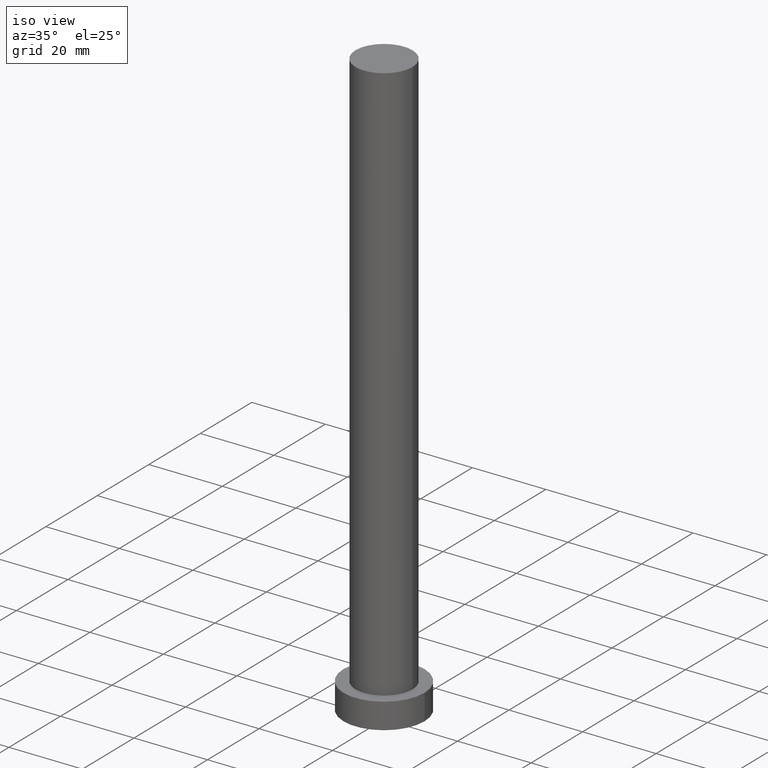
[diagram: clean part render]
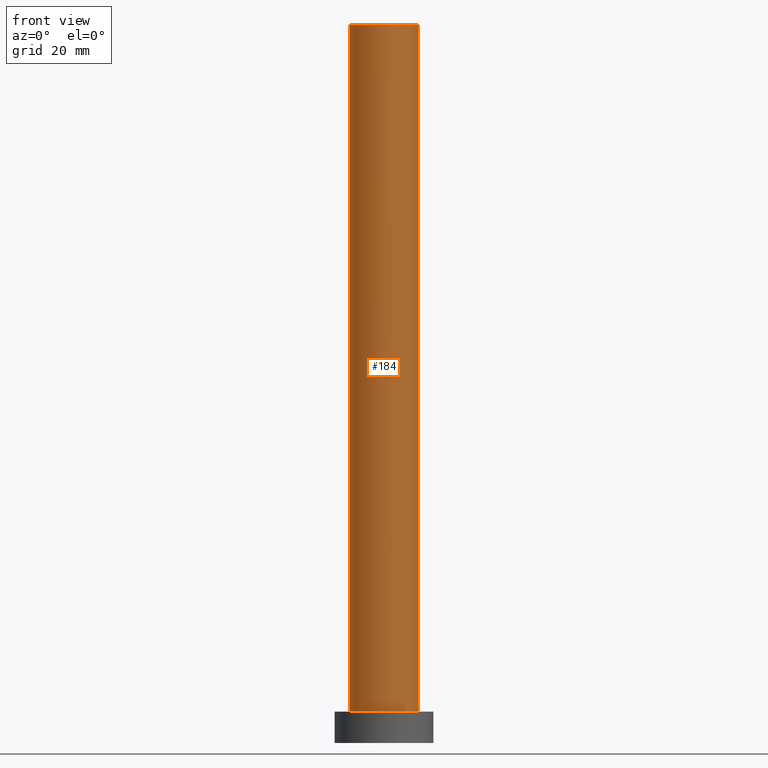
[diagram: tour spotlight — one face highlighted and labeled with its STEP entity id]
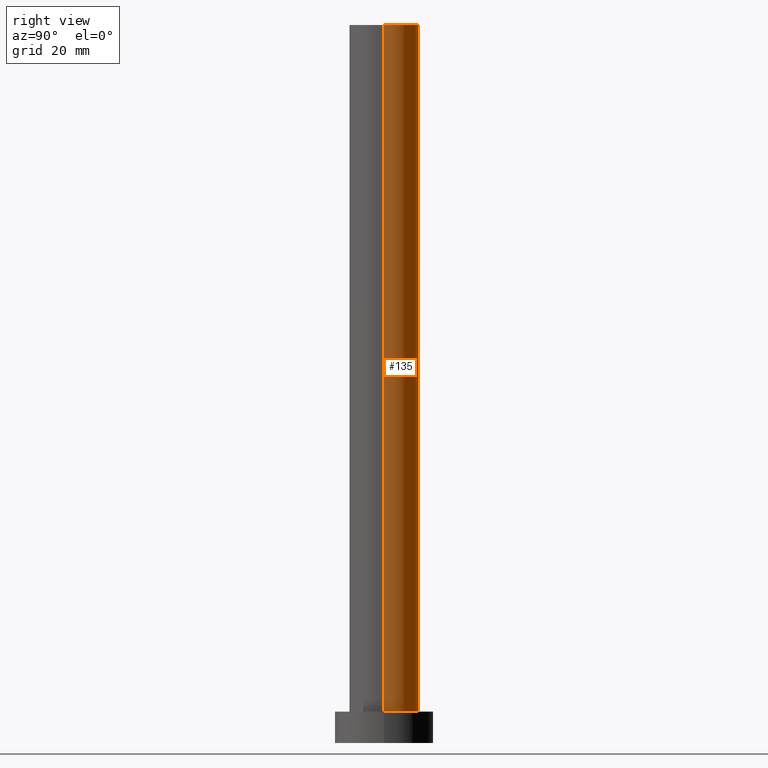
[diagram: tour spotlight — one face highlighted and labeled with its STEP entity id]
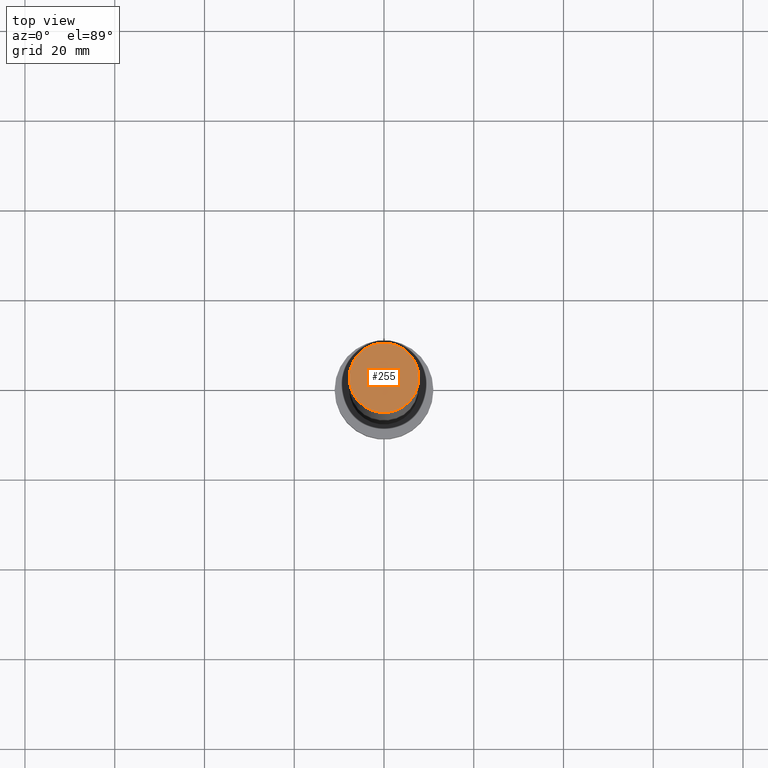
[diagram: tour spotlight — one face highlighted and labeled with its STEP entity id]
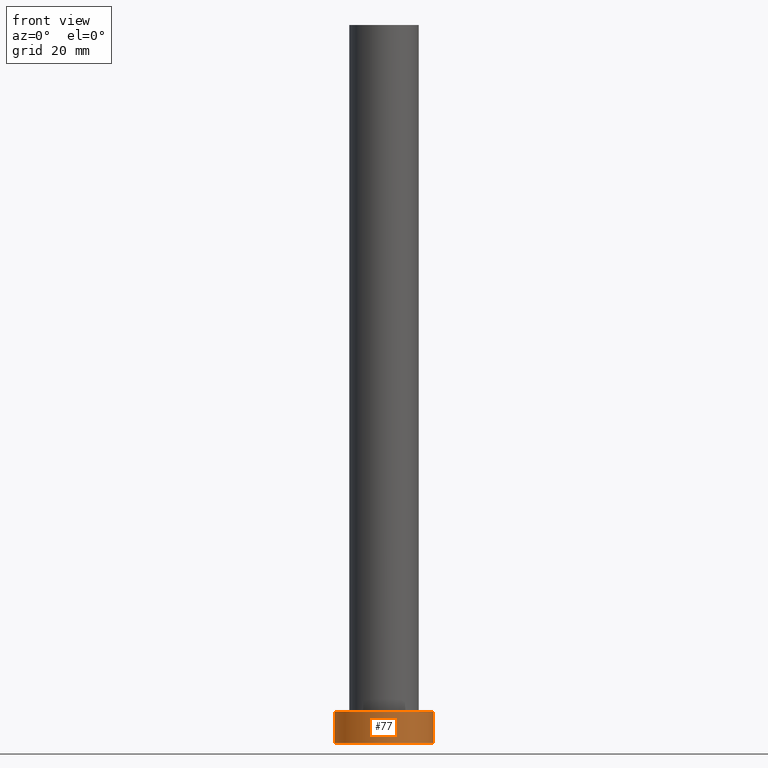
[diagram: tour spotlight — one face highlighted and labeled with its STEP entity id]
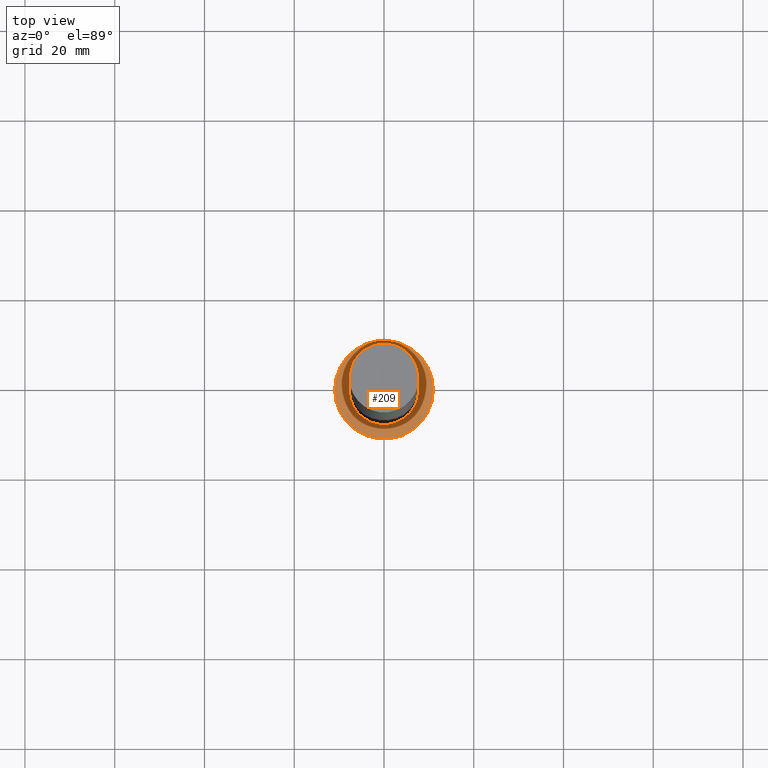
[diagram: tour spotlight — one face highlighted and labeled with its STEP entity id]
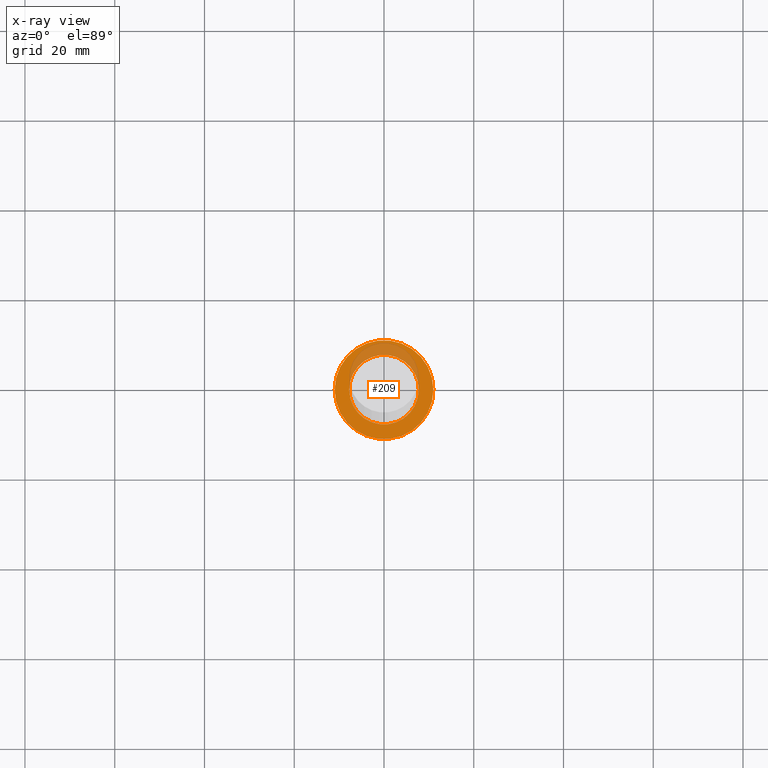
[diagram: x-ray of the same camera — body ghosted, this tour face saturated]
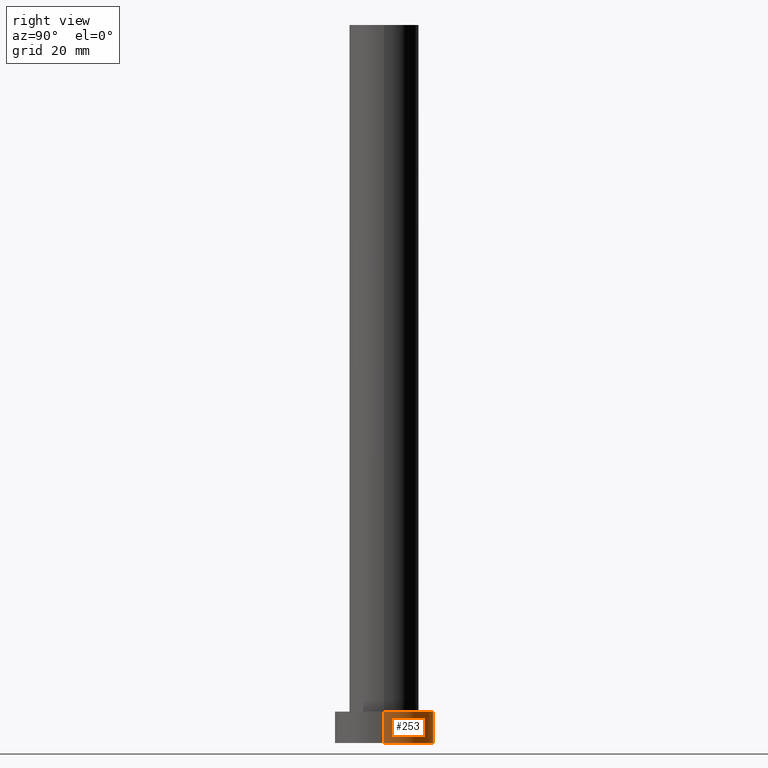
[diagram: tour spotlight — one face highlighted and labeled with its STEP entity id]
A machine part: a face-by-face anatomy tour. The part has 7 B-rep faces; the first image is the clean iso view, then the 6 largest visible faces are spotlighted one at a time (largest first), each with its STEP entity span.

Face 1 — front view, entity #184. In plain terms, the highlighted cylindrical surface (edge-blend (fillet) strip) has radius 7.75 mm, axis along (-0, -0, -1).
Definition (entity closure, byte-faithful):
#10 = DIRECTION ( 'NONE',  ( 0.000000000000000000, 0.000000000000000000, 1.000000000000000000 ) ) ;
#14 = EDGE_CURVE ( 'NONE', #80, #98, #183, .T. ) ;
#25 = CARTESIAN_POINT ( 'NONE',  ( 0.000000000000000000, 0.000000000000000000, 160.0000000000000000 ) ) ;
#26 = CARTESIAN_POINT ( 'NONE',  ( -7.750000000000000000, 0.000000000000000000, 7.000000000000000000 ) ) ;
#39 = CIRCLE ( 'NONE', #53, 7.750000000000000000 ) ;
#40 = LINE ( 'NONE', #100, #207 ) ;
#45 = VECTOR ( 'NONE', #249, 1000.000000000000000 ) ;
#46 = CARTESIAN_POINT ( 'NONE',  ( 0.000000000000000000, 0.000000000000000000, 7.000000000000000000 ) ) ;
#50 = CARTESIAN_POINT ( 'NONE',  ( 0.000000000000000000, 0.000000000000000000, 160.0000000000000000 ) ) ;
#53 = AXIS2_PLACEMENT_3D ( 'NONE', #46, #141, #78 ) ;
#58 = ORIENTED_EDGE ( 'NONE', *, *, #107, .F. ) ;
#60 = DIRECTION ( 'NONE',  ( -1.000000000000000000, 0.000000000000000000, 0.000000000000000000 ) ) ;
#78 = DIRECTION ( 'NONE',  ( 1.000000000000000000, 0.000000000000000000, 0.000000000000000000 ) ) ;
#80 = VERTEX_POINT ( 'NONE', #167 ) ;
#90 = CARTESIAN_POINT ( 'NONE',  ( -7.750000000000000000, 0.000000000000000000, 160.0000000000000000 ) ) ;
#92 = CIRCLE ( 'NONE', #156, 7.750000000000000000 ) ;
#97 = CYLINDRICAL_SURFACE ( 'NONE', #165, 7.750000000000000000 ) ;
#98 = VERTEX_POINT ( 'NONE', #108 ) ;
#99 = VERTEX_POINT ( 'NONE', #90 ) ;
#100 = CARTESIAN_POINT ( 'NONE',  ( -7.750000000000000000, 0.000000000000000000, 160.0000000000000000 ) ) ;
#103 = DIRECTION ( 'NONE',  ( -0.000000000000000000, -0.000000000000000000, -1.000000000000000000 ) ) ;
#107 = EDGE_CURVE ( 'NONE', #99, #80, #92, .T. ) ;
#108 = CARTESIAN_POINT ( 'NONE',  ( 7.750000000000000000, 9.491012693391987787E-16, 7.000000000000000000 ) ) ;
#116 = VERTEX_POINT ( 'NONE', #26 ) ;
#130 = DIRECTION ( 'NONE',  ( 1.000000000000000000, 0.000000000000000000, 0.000000000000000000 ) ) ;
#138 = ORIENTED_EDGE ( 'NONE', *, *, #201, .T. ) ;
#141 = DIRECTION ( 'NONE',  ( 0.000000000000000000, 0.000000000000000000, 1.000000000000000000 ) ) ;
#156 = AXIS2_PLACEMENT_3D ( 'NONE', #50, #10, #130 ) ;
#160 = ORIENTED_EDGE ( 'NONE', *, *, #194, .T. ) ;
#163 = ORIENTED_EDGE ( 'NONE', *, *, #14, .F. ) ;
#164 = EDGE_LOOP ( 'NONE', ( #163, #58, #138, #160 ) ) ;
#165 = AXIS2_PLACEMENT_3D ( 'NONE', #25, #103, #60 ) ;
#166 = CARTESIAN_POINT ( 'NONE',  ( 7.750000000000000000, 9.491012693391987787E-16, 160.0000000000000000 ) ) ;
#167 = CARTESIAN_POINT ( 'NONE',  ( 7.750000000000000000, 9.491012693391987787E-16, 160.0000000000000000 ) ) ;
#183 = LINE ( 'NONE', #166, #45 ) ;
#184 = ADVANCED_FACE ( 'NONE', ( #226 ), #97, .T. ) ;
#194 = EDGE_CURVE ( 'NONE', #116, #98, #39, .T. ) ;
#198 = DIRECTION ( 'NONE',  ( -0.000000000000000000, -0.000000000000000000, -1.000000000000000000 ) ) ;
#201 = EDGE_CURVE ( 'NONE', #99, #116, #40, .T. ) ;
#207 = VECTOR ( 'NONE', #198, 1000.000000000000000 ) ;
#226 = FACE_OUTER_BOUND ( 'NONE', #164, .T. ) ;
#249 = DIRECTION ( 'NONE',  ( -0.000000000000000000, -0.000000000000000000, -1.000000000000000000 ) ) ;

Face 2 — right view, entity #135. In plain terms, the highlighted cylindrical surface (edge-blend (fillet) strip) has radius 7.75 mm, axis along (-0, -0, -1).
Definition (entity closure, byte-faithful):
#1 = ORIENTED_EDGE ( 'NONE', *, *, #159, .T. ) ;
#9 = ORIENTED_EDGE ( 'NONE', *, *, #201, .F. ) ;
#14 = EDGE_CURVE ( 'NONE', #80, #98, #183, .T. ) ;
#26 = CARTESIAN_POINT ( 'NONE',  ( -7.750000000000000000, 0.000000000000000000, 7.000000000000000000 ) ) ;
#40 = LINE ( 'NONE', #100, #207 ) ;
#42 = EDGE_LOOP ( 'NONE', ( #158, #117, #1, #9 ) ) ;
#45 = VECTOR ( 'NONE', #249, 1000.000000000000000 ) ;
#57 = CARTESIAN_POINT ( 'NONE',  ( 0.000000000000000000, 0.000000000000000000, 7.000000000000000000 ) ) ;
#67 = EDGE_CURVE ( 'NONE', #80, #99, #208, .T. ) ;
#68 = CARTESIAN_POINT ( 'NONE',  ( 0.000000000000000000, 0.000000000000000000, 160.0000000000000000 ) ) ;
#80 = VERTEX_POINT ( 'NONE', #167 ) ;
#90 = CARTESIAN_POINT ( 'NONE',  ( -7.750000000000000000, 0.000000000000000000, 160.0000000000000000 ) ) ;
#98 = VERTEX_POINT ( 'NONE', #108 ) ;
#99 = VERTEX_POINT ( 'NONE', #90 ) ;
#100 = CARTESIAN_POINT ( 'NONE',  ( -7.750000000000000000, 0.000000000000000000, 160.0000000000000000 ) ) ;
#104 = FACE_OUTER_BOUND ( 'NONE', #42, .T. ) ;
#106 = DIRECTION ( 'NONE',  ( 0.000000000000000000, 0.000000000000000000, 1.000000000000000000 ) ) ;
#108 = CARTESIAN_POINT ( 'NONE',  ( 7.750000000000000000, 9.491012693391987787E-16, 7.000000000000000000 ) ) ;
#115 = DIRECTION ( 'NONE',  ( -0.000000000000000000, -0.000000000000000000, -1.000000000000000000 ) ) ;
#116 = VERTEX_POINT ( 'NONE', #26 ) ;
#117 = ORIENTED_EDGE ( 'NONE', *, *, #14, .T. ) ;
#135 = ADVANCED_FACE ( 'NONE', ( #104 ), #241, .T. ) ;
#147 = DIRECTION ( 'NONE',  ( -1.000000000000000000, 0.000000000000000000, 0.000000000000000000 ) ) ;
#158 = ORIENTED_EDGE ( 'NONE', *, *, #67, .F. ) ;
#159 = EDGE_CURVE ( 'NONE', #98, #116, #217, .T. ) ;
#166 = CARTESIAN_POINT ( 'NONE',  ( 7.750000000000000000, 9.491012693391987787E-16, 160.0000000000000000 ) ) ;
#167 = CARTESIAN_POINT ( 'NONE',  ( 7.750000000000000000, 9.491012693391987787E-16, 160.0000000000000000 ) ) ;
#171 = AXIS2_PLACEMENT_3D ( 'NONE', #57, #178, #181 ) ;
#178 = DIRECTION ( 'NONE',  ( 0.000000000000000000, 0.000000000000000000, 1.000000000000000000 ) ) ;
#181 = DIRECTION ( 'NONE',  ( 1.000000000000000000, 0.000000000000000000, 0.000000000000000000 ) ) ;
#183 = LINE ( 'NONE', #166, #45 ) ;
#198 = DIRECTION ( 'NONE',  ( -0.000000000000000000, -0.000000000000000000, -1.000000000000000000 ) ) ;
#201 = EDGE_CURVE ( 'NONE', #99, #116, #40, .T. ) ;
#205 = AXIS2_PLACEMENT_3D ( 'NONE', #221, #115, #147 ) ;
#207 = VECTOR ( 'NONE', #198, 1000.000000000000000 ) ;
#208 = CIRCLE ( 'NONE', #224, 7.750000000000000000 ) ;
#217 = CIRCLE ( 'NONE', #171, 7.750000000000000000 ) ;
#221 = CARTESIAN_POINT ( 'NONE',  ( 0.000000000000000000, 0.000000000000000000, 160.0000000000000000 ) ) ;
#224 = AXIS2_PLACEMENT_3D ( 'NONE', #68, #106, #234 ) ;
#234 = DIRECTION ( 'NONE',  ( 1.000000000000000000, 0.000000000000000000, 0.000000000000000000 ) ) ;
#241 = CYLINDRICAL_SURFACE ( 'NONE', #205, 7.750000000000000000 ) ;
#249 = DIRECTION ( 'NONE',  ( -0.000000000000000000, -0.000000000000000000, -1.000000000000000000 ) ) ;

Face 3 — top view, entity #255. In plain terms, the highlighted planar face has unit normal (0, 0, 1).
Definition (entity closure, byte-faithful):
#10 = DIRECTION ( 'NONE',  ( 0.000000000000000000, 0.000000000000000000, 1.000000000000000000 ) ) ;
#35 = DIRECTION ( 'NONE',  ( 1.000000000000000000, 0.000000000000000000, -0.000000000000000000 ) ) ;
#50 = CARTESIAN_POINT ( 'NONE',  ( 0.000000000000000000, 0.000000000000000000, 160.0000000000000000 ) ) ;
#61 = ORIENTED_EDGE ( 'NONE', *, *, #107, .T. ) ;
#67 = EDGE_CURVE ( 'NONE', #80, #99, #208, .T. ) ;
#68 = CARTESIAN_POINT ( 'NONE',  ( 0.000000000000000000, 0.000000000000000000, 160.0000000000000000 ) ) ;
#80 = VERTEX_POINT ( 'NONE', #167 ) ;
#90 = CARTESIAN_POINT ( 'NONE',  ( -7.750000000000000000, 0.000000000000000000, 160.0000000000000000 ) ) ;
#92 = CIRCLE ( 'NONE', #156, 7.750000000000000000 ) ;
#99 = VERTEX_POINT ( 'NONE', #90 ) ;
#105 = PLANE ( 'NONE',  #133 ) ;
#106 = DIRECTION ( 'NONE',  ( 0.000000000000000000, 0.000000000000000000, 1.000000000000000000 ) ) ;
#107 = EDGE_CURVE ( 'NONE', #99, #80, #92, .T. ) ;
#130 = DIRECTION ( 'NONE',  ( 1.000000000000000000, 0.000000000000000000, 0.000000000000000000 ) ) ;
#131 = FACE_OUTER_BOUND ( 'NONE', #213, .T. ) ;
#133 = AXIS2_PLACEMENT_3D ( 'NONE', #169, #151, #35 ) ;
#151 = DIRECTION ( 'NONE',  ( 0.000000000000000000, 0.000000000000000000, 1.000000000000000000 ) ) ;
#156 = AXIS2_PLACEMENT_3D ( 'NONE', #50, #10, #130 ) ;
#167 = CARTESIAN_POINT ( 'NONE',  ( 7.750000000000000000, 9.491012693391987787E-16, 160.0000000000000000 ) ) ;
#169 = CARTESIAN_POINT ( 'NONE',  ( 0.000000000000000000, 0.000000000000000000, 160.0000000000000000 ) ) ;
#208 = CIRCLE ( 'NONE', #224, 7.750000000000000000 ) ;
#213 = EDGE_LOOP ( 'NONE', ( #61, #220 ) ) ;
#220 = ORIENTED_EDGE ( 'NONE', *, *, #67, .T. ) ;
#224 = AXIS2_PLACEMENT_3D ( 'NONE', #68, #106, #234 ) ;
#234 = DIRECTION ( 'NONE',  ( 1.000000000000000000, 0.000000000000000000, 0.000000000000000000 ) ) ;
#255 = ADVANCED_FACE ( 'NONE', ( #131 ), #105, .T. ) ;

Face 4 — front view, entity #77. In plain terms, the highlighted cylindrical surface (partial cylindrical patch) has radius 11 mm, axis along (-0, -0, -1).
Definition (entity closure, byte-faithful):
#5 = EDGE_CURVE ( 'NONE', #41, #19, #140, .T. ) ;
#11 = CARTESIAN_POINT ( 'NONE',  ( -11.00000000000000000, 0.000000000000000000, 0.000000000000000000 ) ) ;
#12 = CARTESIAN_POINT ( 'NONE',  ( 0.000000000000000000, 0.000000000000000000, 7.000000000000000000 ) ) ;
#13 = AXIS2_PLACEMENT_3D ( 'NONE', #71, #31, #28 ) ;
#19 = VERTEX_POINT ( 'NONE', #47 ) ;
#28 = DIRECTION ( 'NONE',  ( -1.000000000000000000, 0.000000000000000000, 0.000000000000000000 ) ) ;
#29 = EDGE_CURVE ( 'NONE', #239, #195, #175, .T. ) ;
#31 = DIRECTION ( 'NONE',  ( -0.000000000000000000, -0.000000000000000000, -1.000000000000000000 ) ) ;
#36 = VECTOR ( 'NONE', #65, 1000.000000000000000 ) ;
#41 = VERTEX_POINT ( 'NONE', #11 ) ;
#44 = ORIENTED_EDGE ( 'NONE', *, *, #95, .T. ) ;
#47 = CARTESIAN_POINT ( 'NONE',  ( 11.00000000000000000, 1.347111479062088405E-15, 0.000000000000000000 ) ) ;
#49 = DIRECTION ( 'NONE',  ( 1.000000000000000000, 0.000000000000000000, 0.000000000000000000 ) ) ;
#65 = DIRECTION ( 'NONE',  ( -0.000000000000000000, -0.000000000000000000, -1.000000000000000000 ) ) ;
#71 = CARTESIAN_POINT ( 'NONE',  ( 0.000000000000000000, 0.000000000000000000, 7.000000000000000000 ) ) ;
#77 = ADVANCED_FACE ( 'NONE', ( #148 ), #247, .T. ) ;
#83 = ORIENTED_EDGE ( 'NONE', *, *, #5, .T. ) ;
#85 = ORIENTED_EDGE ( 'NONE', *, *, #111, .F. ) ;
#88 = DIRECTION ( 'NONE',  ( 0.000000000000000000, 0.000000000000000000, 1.000000000000000000 ) ) ;
#91 = CARTESIAN_POINT ( 'NONE',  ( 11.00000000000000000, 1.347111479062088405E-15, 7.000000000000000000 ) ) ;
#95 = EDGE_CURVE ( 'NONE', #239, #41, #150, .T. ) ;
#102 = EDGE_LOOP ( 'NONE', ( #85, #242, #44, #83 ) ) ;
#111 = EDGE_CURVE ( 'NONE', #195, #19, #206, .T. ) ;
#126 = DIRECTION ( 'NONE',  ( 1.000000000000000000, 0.000000000000000000, 0.000000000000000000 ) ) ;
#140 = CIRCLE ( 'NONE', #144, 11.00000000000000000 ) ;
#144 = AXIS2_PLACEMENT_3D ( 'NONE', #200, #180, #49 ) ;
#146 = CARTESIAN_POINT ( 'NONE',  ( -11.00000000000000000, 0.000000000000000000, 7.000000000000000000 ) ) ;
#148 = FACE_OUTER_BOUND ( 'NONE', #102, .T. ) ;
#150 = LINE ( 'NONE', #146, #211 ) ;
#162 = CARTESIAN_POINT ( 'NONE',  ( -11.00000000000000000, 0.000000000000000000, 7.000000000000000000 ) ) ;
#175 = CIRCLE ( 'NONE', #235, 11.00000000000000000 ) ;
#180 = DIRECTION ( 'NONE',  ( 0.000000000000000000, 0.000000000000000000, 1.000000000000000000 ) ) ;
#195 = VERTEX_POINT ( 'NONE', #218 ) ;
#200 = CARTESIAN_POINT ( 'NONE',  ( 0.000000000000000000, 0.000000000000000000, 0.000000000000000000 ) ) ;
#206 = LINE ( 'NONE', #91, #36 ) ;
#211 = VECTOR ( 'NONE', #231, 1000.000000000000000 ) ;
#218 = CARTESIAN_POINT ( 'NONE',  ( 11.00000000000000000, 1.347111479062088405E-15, 7.000000000000000000 ) ) ;
#231 = DIRECTION ( 'NONE',  ( -0.000000000000000000, -0.000000000000000000, -1.000000000000000000 ) ) ;
#235 = AXIS2_PLACEMENT_3D ( 'NONE', #12, #88, #126 ) ;
#239 = VERTEX_POINT ( 'NONE', #162 ) ;
#242 = ORIENTED_EDGE ( 'NONE', *, *, #29, .F. ) ;
#247 = CYLINDRICAL_SURFACE ( 'NONE', #13, 11.00000000000000000 ) ;

Face 5 — top view, entity #209. An x-ray twin of the same camera follows (body ghosted, this face saturated) — the face is partly hidden behind the body. In plain terms, the highlighted planar face has unit normal (0, 0, 1).
Definition (entity closure, byte-faithful):
#3 = ORIENTED_EDGE ( 'NONE', *, *, #159, .F. ) ;
#4 = DIRECTION ( 'NONE',  ( 0.000000000000000000, 0.000000000000000000, 1.000000000000000000 ) ) ;
#12 = CARTESIAN_POINT ( 'NONE',  ( 0.000000000000000000, 0.000000000000000000, 7.000000000000000000 ) ) ;
#26 = CARTESIAN_POINT ( 'NONE',  ( -7.750000000000000000, 0.000000000000000000, 7.000000000000000000 ) ) ;
#29 = EDGE_CURVE ( 'NONE', #239, #195, #175, .T. ) ;
#33 = EDGE_CURVE ( 'NONE', #195, #239, #110, .T. ) ;
#39 = CIRCLE ( 'NONE', #53, 7.750000000000000000 ) ;
#46 = CARTESIAN_POINT ( 'NONE',  ( 0.000000000000000000, 0.000000000000000000, 7.000000000000000000 ) ) ;
#53 = AXIS2_PLACEMENT_3D ( 'NONE', #46, #141, #78 ) ;
#55 = ORIENTED_EDGE ( 'NONE', *, *, #33, .T. ) ;
#57 = CARTESIAN_POINT ( 'NONE',  ( 0.000000000000000000, 0.000000000000000000, 7.000000000000000000 ) ) ;
#64 = AXIS2_PLACEMENT_3D ( 'NONE', #176, #4, #81 ) ;
#66 = AXIS2_PLACEMENT_3D ( 'NONE', #189, #187, #204 ) ;
#78 = DIRECTION ( 'NONE',  ( 1.000000000000000000, 0.000000000000000000, 0.000000000000000000 ) ) ;
#81 = DIRECTION ( 'NONE',  ( 1.000000000000000000, 0.000000000000000000, -0.000000000000000000 ) ) ;
#88 = DIRECTION ( 'NONE',  ( 0.000000000000000000, 0.000000000000000000, 1.000000000000000000 ) ) ;
#96 = EDGE_LOOP ( 'NONE', ( #216, #55 ) ) ;
#98 = VERTEX_POINT ( 'NONE', #108 ) ;
#108 = CARTESIAN_POINT ( 'NONE',  ( 7.750000000000000000, 9.491012693391987787E-16, 7.000000000000000000 ) ) ;
#110 = CIRCLE ( 'NONE', #66, 11.00000000000000000 ) ;
#116 = VERTEX_POINT ( 'NONE', #26 ) ;
#118 = FACE_BOUND ( 'NONE', #120, .T. ) ;
#120 = EDGE_LOOP ( 'NONE', ( #254, #3 ) ) ;
#121 = PLANE ( 'NONE',  #64 ) ;
#126 = DIRECTION ( 'NONE',  ( 1.000000000000000000, 0.000000000000000000, 0.000000000000000000 ) ) ;
#141 = DIRECTION ( 'NONE',  ( 0.000000000000000000, 0.000000000000000000, 1.000000000000000000 ) ) ;
#159 = EDGE_CURVE ( 'NONE', #98, #116, #217, .T. ) ;
#162 = CARTESIAN_POINT ( 'NONE',  ( -11.00000000000000000, 0.000000000000000000, 7.000000000000000000 ) ) ;
#171 = AXIS2_PLACEMENT_3D ( 'NONE', #57, #178, #181 ) ;
#175 = CIRCLE ( 'NONE', #235, 11.00000000000000000 ) ;
#176 = CARTESIAN_POINT ( 'NONE',  ( 0.000000000000000000, 0.000000000000000000, 7.000000000000000000 ) ) ;
#178 = DIRECTION ( 'NONE',  ( 0.000000000000000000, 0.000000000000000000, 1.000000000000000000 ) ) ;
#181 = DIRECTION ( 'NONE',  ( 1.000000000000000000, 0.000000000000000000, 0.000000000000000000 ) ) ;
#187 = DIRECTION ( 'NONE',  ( 0.000000000000000000, 0.000000000000000000, 1.000000000000000000 ) ) ;
#189 = CARTESIAN_POINT ( 'NONE',  ( 0.000000000000000000, 0.000000000000000000, 7.000000000000000000 ) ) ;
#194 = EDGE_CURVE ( 'NONE', #116, #98, #39, .T. ) ;
#195 = VERTEX_POINT ( 'NONE', #218 ) ;
#196 = FACE_OUTER_BOUND ( 'NONE', #96, .T. ) ;
#204 = DIRECTION ( 'NONE',  ( 1.000000000000000000, 0.000000000000000000, 0.000000000000000000 ) ) ;
#209 = ADVANCED_FACE ( 'NONE', ( #118, #196 ), #121, .T. ) ;
#216 = ORIENTED_EDGE ( 'NONE', *, *, #29, .T. ) ;
#217 = CIRCLE ( 'NONE', #171, 7.750000000000000000 ) ;
#218 = CARTESIAN_POINT ( 'NONE',  ( 11.00000000000000000, 1.347111479062088405E-15, 7.000000000000000000 ) ) ;
#235 = AXIS2_PLACEMENT_3D ( 'NONE', #12, #88, #126 ) ;
#239 = VERTEX_POINT ( 'NONE', #162 ) ;
#254 = ORIENTED_EDGE ( 'NONE', *, *, #194, .F. ) ;

Face 6 — right view, entity #253. In plain terms, the highlighted cylindrical surface (partial cylindrical patch) has radius 11 mm, axis along (-0, -0, -1).
Definition (entity closure, byte-faithful):
#11 = CARTESIAN_POINT ( 'NONE',  ( -11.00000000000000000, 0.000000000000000000, 0.000000000000000000 ) ) ;
#17 = AXIS2_PLACEMENT_3D ( 'NONE', #59, #143, #223 ) ;
#19 = VERTEX_POINT ( 'NONE', #47 ) ;
#21 = ORIENTED_EDGE ( 'NONE', *, *, #33, .F. ) ;
#22 = ORIENTED_EDGE ( 'NONE', *, *, #95, .F. ) ;
#30 = AXIS2_PLACEMENT_3D ( 'NONE', #228, #124, #202 ) ;
#33 = EDGE_CURVE ( 'NONE', #195, #239, #110, .T. ) ;
#36 = VECTOR ( 'NONE', #65, 1000.000000000000000 ) ;
#41 = VERTEX_POINT ( 'NONE', #11 ) ;
#47 = CARTESIAN_POINT ( 'NONE',  ( 11.00000000000000000, 1.347111479062088405E-15, 0.000000000000000000 ) ) ;
#59 = CARTESIAN_POINT ( 'NONE',  ( 0.000000000000000000, 0.000000000000000000, 7.000000000000000000 ) ) ;
#65 = DIRECTION ( 'NONE',  ( -0.000000000000000000, -0.000000000000000000, -1.000000000000000000 ) ) ;
#66 = AXIS2_PLACEMENT_3D ( 'NONE', #189, #187, #204 ) ;
#72 = FACE_OUTER_BOUND ( 'NONE', #157, .T. ) ;
#73 = CIRCLE ( 'NONE', #30, 11.00000000000000000 ) ;
#91 = CARTESIAN_POINT ( 'NONE',  ( 11.00000000000000000, 1.347111479062088405E-15, 7.000000000000000000 ) ) ;
#95 = EDGE_CURVE ( 'NONE', #239, #41, #150, .T. ) ;
#110 = CIRCLE ( 'NONE', #66, 11.00000000000000000 ) ;
#111 = EDGE_CURVE ( 'NONE', #195, #19, #206, .T. ) ;
#124 = DIRECTION ( 'NONE',  ( 0.000000000000000000, 0.000000000000000000, 1.000000000000000000 ) ) ;
#125 = EDGE_CURVE ( 'NONE', #19, #41, #73, .T. ) ;
#142 = ORIENTED_EDGE ( 'NONE', *, *, #125, .T. ) ;
#143 = DIRECTION ( 'NONE',  ( -0.000000000000000000, -0.000000000000000000, -1.000000000000000000 ) ) ;
#146 = CARTESIAN_POINT ( 'NONE',  ( -11.00000000000000000, 0.000000000000000000, 7.000000000000000000 ) ) ;
#150 = LINE ( 'NONE', #146, #211 ) ;
#157 = EDGE_LOOP ( 'NONE', ( #21, #243, #142, #22 ) ) ;
#161 = CYLINDRICAL_SURFACE ( 'NONE', #17, 11.00000000000000000 ) ;
#162 = CARTESIAN_POINT ( 'NONE',  ( -11.00000000000000000, 0.000000000000000000, 7.000000000000000000 ) ) ;
#187 = DIRECTION ( 'NONE',  ( 0.000000000000000000, 0.000000000000000000, 1.000000000000000000 ) ) ;
#189 = CARTESIAN_POINT ( 'NONE',  ( 0.000000000000000000, 0.000000000000000000, 7.000000000000000000 ) ) ;
#195 = VERTEX_POINT ( 'NONE', #218 ) ;
#202 = DIRECTION ( 'NONE',  ( 1.000000000000000000, 0.000000000000000000, 0.000000000000000000 ) ) ;
#204 = DIRECTION ( 'NONE',  ( 1.000000000000000000, 0.000000000000000000, 0.000000000000000000 ) ) ;
#206 = LINE ( 'NONE', #91, #36 ) ;
#211 = VECTOR ( 'NONE', #231, 1000.000000000000000 ) ;
#218 = CARTESIAN_POINT ( 'NONE',  ( 11.00000000000000000, 1.347111479062088405E-15, 7.000000000000000000 ) ) ;
#223 = DIRECTION ( 'NONE',  ( -1.000000000000000000, 0.000000000000000000, 0.000000000000000000 ) ) ;
#228 = CARTESIAN_POINT ( 'NONE',  ( 0.000000000000000000, 0.000000000000000000, 0.000000000000000000 ) ) ;
#231 = DIRECTION ( 'NONE',  ( -0.000000000000000000, -0.000000000000000000, -1.000000000000000000 ) ) ;
#239 = VERTEX_POINT ( 'NONE', #162 ) ;
#243 = ORIENTED_EDGE ( 'NONE', *, *, #111, .T. ) ;
#253 = ADVANCED_FACE ( 'NONE', ( #72 ), #161, .T. ) ;